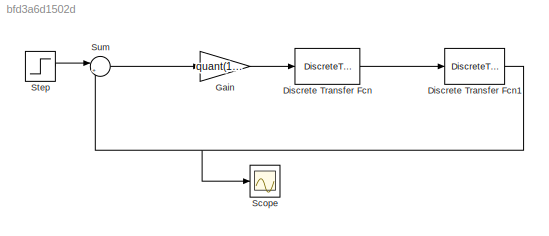
MODEL slx_bfd3a6d1502d
KIND model
CONFIG AbsTol = auto
CONFIG EnableMultiTasking = off
CONFIG FixedStep = auto
CONFIG MaxStep = auto
CONFIG MinStep = auto
CONFIG RelTol = 1e-3
CONFIG SampleTimeConstraint = Unconstrained
CONFIG SolverName = VariableStepAuto
CONFIG StartTime = 0.0
CONFIG StopTime = 200
BLOCK [DiscreteTransferFcn] Discrete Transfer Fcn
  Denominator = quant([1  -2.82 2.65 -0.8302], 2^-16)
  InputPortMap = u0
  Numerator = quant([1 -0.072 -0.2349], 2^-16)
  Ports = [1, 1]
  SampleTime = 0.1
BLOCK [DiscreteTransferFcn] Discrete Transfer Fcn1
  Denominator = [1 -1]
  InputPortMap = u0
  Ports = [1, 1]
  SampleTime = 0.1
BLOCK [Gain] Gain
  Gain = quant(10^-5, 2^-16)
BLOCK [Scope] Scope
  Floating = off
  NumInputPorts = 1
  Ports = [1]
  ScopeSpecificationString = Simulink.scopes.TimeScopeBlockCfg('CurrentConfiguration', extmgr.ConfigurationSet(extmgr.Configuration('Core','General UI',true),extmgr.Configuration('Core','Source UI',true),extmgr.Configuration('Sources','WiredSimulink',true),extmgr.Configuration('Visuals','Time Domain',true,'SerializedDisplays',{struct('MinYLimReal','-5957443791.69677','MaxYLimReal','19099389001.70696','YLabelReal','','MinYLimM...<+1442ch>
BLOCK [Step] Step
  SampleTime = 0.1
  VectorParams1D = off
  ZeroCross = off
BLOCK [Sum] Sum
  Inputs = |+-
  Ports = [2, 1]
NET Discrete Transfer Fcn1:1 -> Scope:1, Sum:2
LINE Discrete Transfer Fcn:1 -> Discrete Transfer Fcn1:1
LINE Gain:1 -> Discrete Transfer Fcn:1
LINE Step:1 -> Sum:1
LINE Sum:1 -> Gain:1
note: NET lines group one-source signal fan-out (src -> all destinations, sorted); 1:1 wires keep LINE
